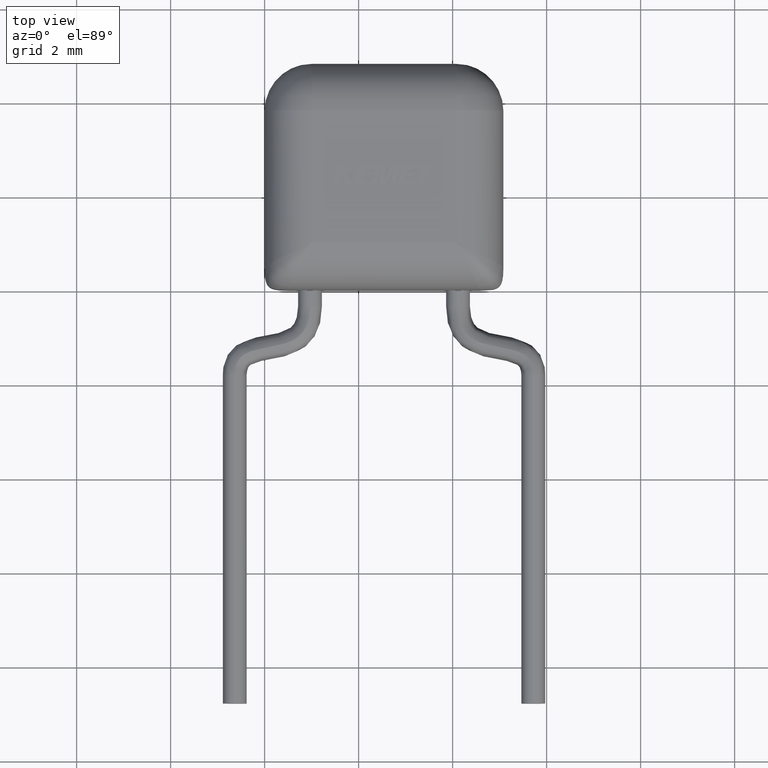
[diagram: clean part render]
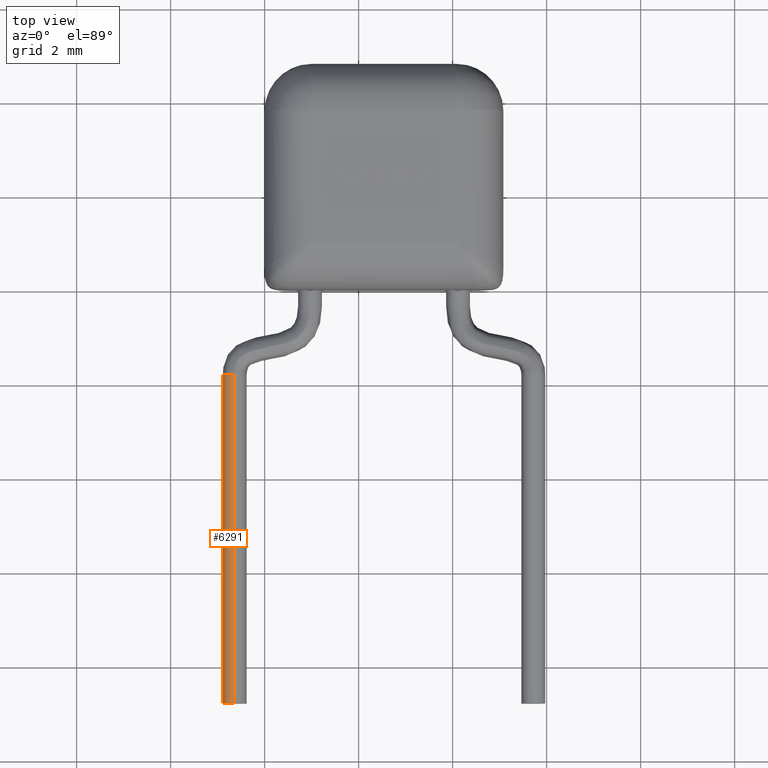
[diagram: same view with one face highlighted and labeled with its STEP entity id]
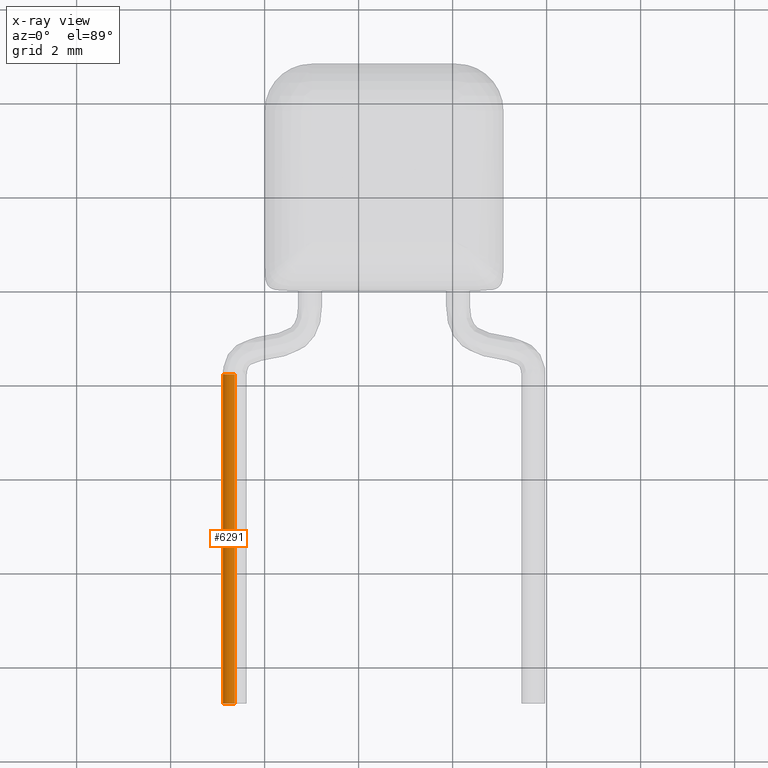
[diagram: x-ray of the same camera — body ghosted, the highlighted face saturated]
A machine part, top view. The second image highlights one B-rep face of the part: STEP entity #6291.
The next image is the same camera in x-ray: the body ghosted, the highlighted face saturated — about 0% of this face is hidden behind the body in this view.
In plain terms, the highlighted face is a freeform B-spline surface patch.
Its self-contained STEP definition (entity closure, byte-faithful):
#205 = ORIENTED_EDGE ( 'NONE', *, *, #1807, .F. ) ;
#447 = VECTOR ( 'NONE', #3697, 1000.000000000000000 ) ;
#648 = CARTESIAN_POINT ( 'NONE',  ( -0.6349999999999987900, -8.789239999999999500, 1.589999999999999900 ) ) ;
#661 = ORIENTED_EDGE ( 'NONE', *, *, #1155, .T. ) ;
#862 = CARTESIAN_POINT ( 'NONE',  ( -0.6349999999999997900, -1.789240000000000800, 1.844999999999999800 ) ) ;
#1155 = EDGE_CURVE ( 'NONE', #1294, #6392, #3524, .T. ) ;
#1156 = CIRCLE ( 'NONE', #1659, 0.2550000000000000000 ) ;
#1162 = ORIENTED_EDGE ( 'NONE', *, *, #6501, .F. ) ;
#1294 = VERTEX_POINT ( 'NONE', #5185 ) ;
#1355 = DIRECTION ( 'NONE',  ( 1.548860246407863800E-016, -1.000000000000000000, 0.0000000000000000000 ) ) ;
#1411 = VECTOR ( 'NONE', #1355, 1000.000000000000000 ) ;
#1458 = CARTESIAN_POINT ( 'NONE',  ( -1.144996013411335500, -1.787223491992433200, 1.844999999999999800 ) ) ;
#1659 = AXIS2_PLACEMENT_3D ( 'NONE', #648, #3729, #6286 ) ;
#1660 = DIRECTION ( 'NONE',  ( 0.0000000000000000000, 0.0000000000000000000, -1.000000000000000000 ) ) ;
#1713 =( BOUNDED_SURFACE ( )  B_SPLINE_SURFACE ( 3, 1, ( 
 ( #862, #3025 ),
 ( #1458, #5113 ),
 ( #2520, #5092 ),
 ( #5532, #5593 ) ),
 .UNSPECIFIED., .F., .F., .T. ) 
 B_SPLINE_SURFACE_WITH_KNOTS ( ( 4, 4 ),
 ( 2, 2 ),
 ( 0.0000000000000000000, 1.000000000000000000 ),
 ( 0.0000000000000000000, 1.000000000000000000 ),
 .UNSPECIFIED. ) 
 GEOMETRIC_REPRESENTATION_ITEM ( )  RATIONAL_B_SPLINE_SURFACE ( (
 ( 1.000000000000000000, 1.000000000000000000),
 ( 0.3333333333333333700, 0.3333333333333333700),
 ( 0.3333333333333333700, 0.3333333333333333700),
 ( 1.000000000000000000, 1.000000000000000000) ) ) 
 REPRESENTATION_ITEM ( '' )  SURFACE ( )  );
#1807 = EDGE_CURVE ( 'NONE', #6624, #6392, #1156, .T. ) ;
#2150 = EDGE_CURVE ( 'NONE', #5534, #1294, #2852, .T. ) ;
#2520 = CARTESIAN_POINT ( 'NONE',  ( -1.144996013411335500, -1.787223491992433200, 1.334999999999999700 ) ) ;
#2852 = CIRCLE ( 'NONE', #2912, 0.2550000000000000000 ) ;
#2912 = AXIS2_PLACEMENT_3D ( 'NONE', #3201, #3747, #1660 ) ;
#3025 = CARTESIAN_POINT ( 'NONE',  ( -0.6349999999999987900, -8.789239999999995900, 1.844999999999999800 ) ) ;
#3201 = CARTESIAN_POINT ( 'NONE',  ( -0.6349999999999997900, -1.789240000000000800, 1.589999999999999900 ) ) ;
#3422 = CARTESIAN_POINT ( 'NONE',  ( -0.6349999999999997900, -1.789240000000000800, 1.334999999999999700 ) ) ;
#3524 = LINE ( 'NONE', #3422, #1411 ) ;
#3697 = DIRECTION ( 'NONE',  ( 1.548860246407863800E-016, -1.000000000000000000, 0.0000000000000000000 ) ) ;
#3729 = DIRECTION ( 'NONE',  ( -0.003953937269740414300, -0.9999921831594820200, -1.232595164407828500E-032 ) ) ;
#3747 = DIRECTION ( 'NONE',  ( -0.003953937269740414300, -0.9999921831594820200, -1.232595164407828500E-032 ) ) ;
#4502 = CARTESIAN_POINT ( 'NONE',  ( -0.6349999999999997900, -1.789240000000000800, 1.844999999999999800 ) ) ;
#4694 = FACE_OUTER_BOUND ( 'NONE', #5964, .T. ) ;
#4790 = CARTESIAN_POINT ( 'NONE',  ( -0.6349999999999987900, -8.789239999999999500, 1.334999999999999700 ) ) ;
#5092 = CARTESIAN_POINT ( 'NONE',  ( -1.144996013411334200, -8.787223491992428100, 1.334999999999999700 ) ) ;
#5113 = CARTESIAN_POINT ( 'NONE',  ( -1.144996013411334200, -8.787223491992428100, 1.844999999999999800 ) ) ;
#5185 = CARTESIAN_POINT ( 'NONE',  ( -0.6349999999999997900, -1.789240000000000800, 1.334999999999999700 ) ) ;
#5532 = CARTESIAN_POINT ( 'NONE',  ( -0.6349999999999997900, -1.789240000000000800, 1.334999999999999700 ) ) ;
#5534 = VERTEX_POINT ( 'NONE', #4502 ) ;
#5593 = CARTESIAN_POINT ( 'NONE',  ( -0.6349999999999987900, -8.789239999999995900, 1.334999999999999700 ) ) ;
#5842 = CARTESIAN_POINT ( 'NONE',  ( -0.6349999999999987900, -8.789239999999999500, 1.844999999999999800 ) ) ;
#5964 = EDGE_LOOP ( 'NONE', ( #1162, #6252, #661, #205 ) ) ;
#6125 = LINE ( 'NONE', #6228, #447 ) ;
#6228 = CARTESIAN_POINT ( 'NONE',  ( -0.6349999999999997900, -1.789240000000000800, 1.844999999999999800 ) ) ;
#6252 = ORIENTED_EDGE ( 'NONE', *, *, #2150, .T. ) ;
#6286 = DIRECTION ( 'NONE',  ( 0.0000000000000000000, 0.0000000000000000000, -1.000000000000000000 ) ) ;
#6291 = ADVANCED_FACE ( 'NONE', ( #4694 ), #1713, .T. ) ;
#6392 = VERTEX_POINT ( 'NONE', #4790 ) ;
#6501 = EDGE_CURVE ( 'NONE', #5534, #6624, #6125, .T. ) ;
#6624 = VERTEX_POINT ( 'NONE', #5842 ) ;